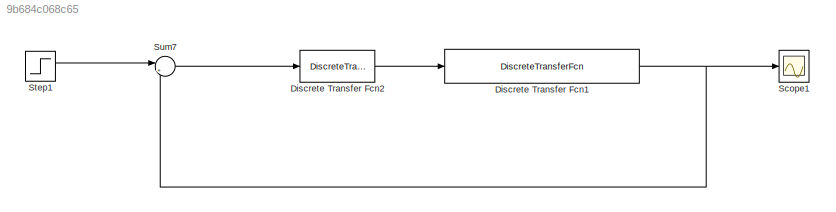
MODEL slx_9b684c068c65
KIND model
CONFIG AbsTol = auto
CONFIG EnableMultiTasking = off
CONFIG FixedStep = auto
CONFIG MaxStep = auto
CONFIG MinStep = auto
CONFIG RelTol = 1e-3
CONFIG SampleTimeConstraint = Unconstrained
CONFIG Solver = VariableStepAuto
CONFIG SolverName = VariableStepAuto
CONFIG StartTime = 0.0
CONFIG StopTime = 2000.0
BLOCK [DiscreteTransferFcn] Discrete Transfer Fcn1 
  Denominator = [1 -2.235 1.583 -0.3479]
  InputPortMap = u0
  Numerator = [-0.00046 -0.00143 -0.0002716]
  Ports = [1, 1]
  SampleTime = 9
BLOCK [DiscreteTransferFcn] Discrete Transfer Fcn2 
  Denominator = [1 0.3394]
  InputPortMap = u0
  Numerator = [-8.5297]
  Ports = [1, 1]
  SampleTime = 9
BLOCK [Scope] Scope1 
  Floating = off
  NumInputPorts = 1
  Ports = [1]
  ScopeSpecificationString = Simulink.scopes.TimeScopeBlockCfg('CurrentConfiguration', extmgr.ConfigurationSet(extmgr.Configuration('Core','General UI',true),extmgr.Configuration('Core','Source UI',true),extmgr.Configuration('Sources','WiredSimulink',true,'DataLoggingVariableName','ScopeData1'),extmgr.Configuration('Visuals','Time Domain',true,'SerializedDisplays',{struct('MinYLimReal','-0.14849','MaxYLimReal','1.33638','YLab...<+1826ch>
BLOCK [Step] Step1 
  SampleTime = 0
BLOCK [Sum] Sum7
  IconShape = round
  InputSameDT = off
  Inputs = |+-
  OutDataTypeStr = Inherit: Inherit via internal rule
  Ports = [2, 1]
  SaturateOnIntegerOverflow = off
NET Discrete Transfer Fcn1 :1 -> Scope1 :1, Sum7:2
LINE Discrete Transfer Fcn2 :1 -> Discrete Transfer Fcn1 :1
LINE Step1 :1 -> Sum7:1
LINE Sum7:1 -> Discrete Transfer Fcn2 :1
note: NET lines group one-source signal fan-out (src -> all destinations, sorted); 1:1 wires keep LINE
